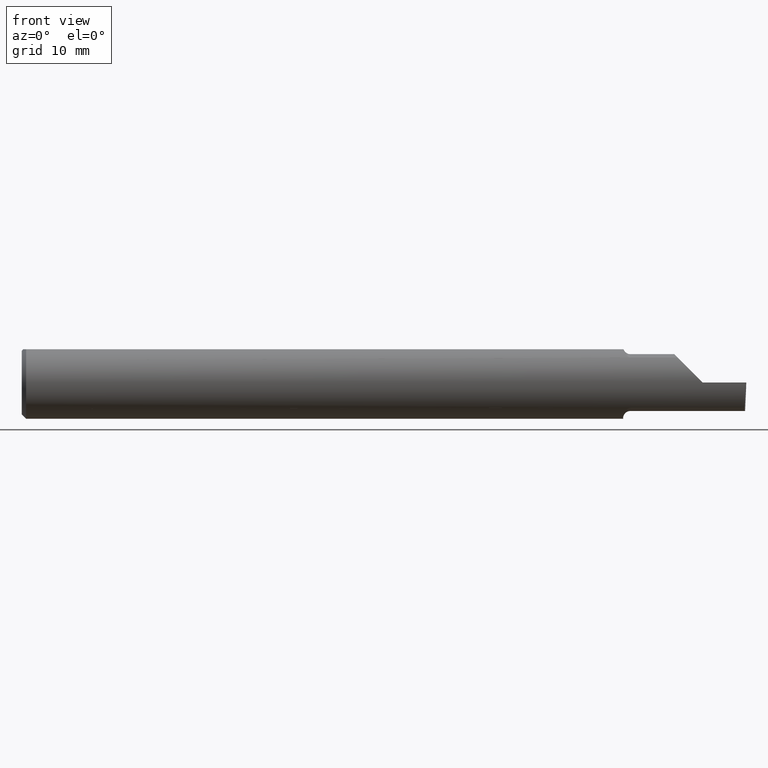
[diagram: clean part render]
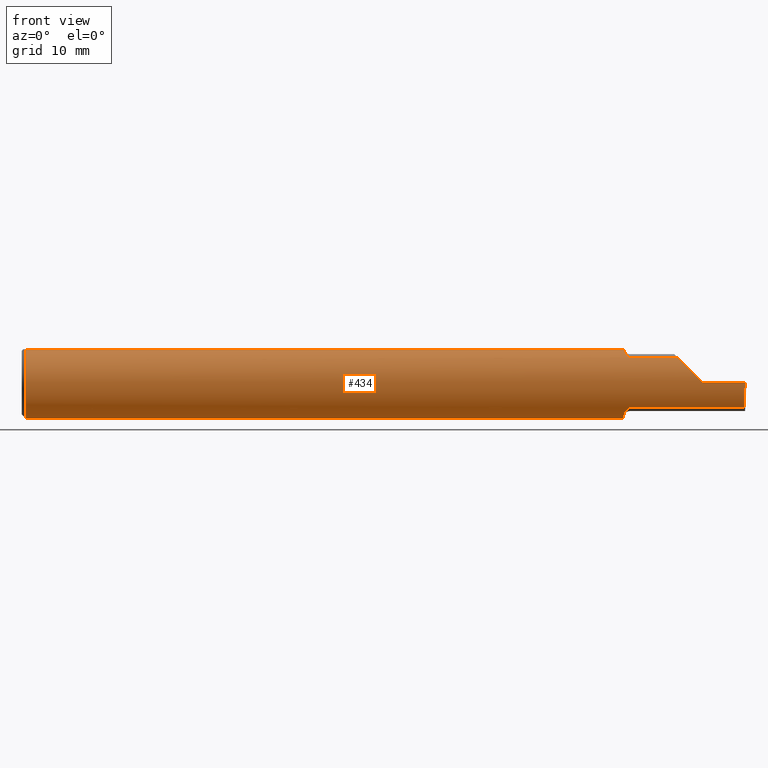
[diagram: same view with one face highlighted and labeled with its STEP entity id]
A machine part, front view. The second image highlights one B-rep face of the part: STEP entity #434.
In plain terms, the highlighted cylindrical surface (edge-blend (fillet) strip) has radius 3.1712 mm, axis along (-1, -0, -0).
Its self-contained STEP definition (entity closure, byte-faithful):
#4 = CARTESIAN_POINT ( 'NONE',  ( 2.075000000000000622, -0.02715330672748003313, -0.1218614805168695830 ) ) ;
#16 = AXIS2_PLACEMENT_3D ( 'NONE', #359, #484, #613 ) ;
#22 = ORIENTED_EDGE ( 'NONE', *, *, #275, .F. ) ;
#24 = CARTESIAN_POINT ( 'NONE',  ( 2.100000000000000089, -0.09015216647662478711, -0.08637192471845771269 ) ) ;
#35 = B_SPLINE_CURVE_WITH_KNOTS ( 'NONE', 3,
 ( #24, #43, #519, #162, #346, #220, #527, #355, #583, #703, #158, #708 ),
 .UNSPECIFIED., .F., .F.,
 ( 4, 2, 2, 2, 2, 4 ),
 ( 1.963988863383734834E-07, 0.0002052720857047376818, 0.0004103477725231370198, 0.0008204991461599461583, 0.001230650519796755134, 0.001640801893433564435 ),
 .UNSPECIFIED. ) ;
#42 = EDGE_CURVE ( 'NONE', #288, #68, #99, .T. ) ;
#43 = CARTESIAN_POINT ( 'NONE',  ( 2.097259638933032022, -0.09015216647662444016, -0.08637192471845808739 ) ) ;
#44 = ORIENTED_EDGE ( 'NONE', *, *, #670, .F. ) ;
#58 = DIRECTION ( 'NONE',  ( -1.000000000000000000, -0.000000000000000000, -0.000000000000000000 ) ) ;
#62 = ORIENTED_EDGE ( 'NONE', *, *, #557, .T. ) ;
#65 = CARTESIAN_POINT ( 'NONE',  ( 2.076326891871145719, -0.04895916665872582924, 0.1148500000000000076 ) ) ;
#68 = VERTEX_POINT ( 'NONE', #578 ) ;
#84 = CARTESIAN_POINT ( 'NONE',  ( 2.494256244271086054, -0.1126860773865890342, -0.06285177167860771241 ) ) ;
#92 = DIRECTION ( 'NONE',  ( 0.000000000000000000, 0.000000000000000000, 1.000000000000000000 ) ) ;
#94 = EDGE_CURVE ( 'NONE', #730, #425, #35, .T. ) ;
#97 = CARTESIAN_POINT ( 'NONE',  ( 3.749399456654637998E-32, -0.1248500000000000026, 3.061616997868380676E-16 ) ) ;
#98 = CARTESIAN_POINT ( 'NONE',  ( 2.076326891871145719, -0.04895916665872582924, 0.1148500000000000076 ) ) ;
#99 =( BOUNDED_CURVE ( )  B_SPLINE_CURVE ( 3, ( #456, #84, #412, #766 ),
 .UNSPECIFIED., .F., .T. ) 
 B_SPLINE_CURVE_WITH_KNOTS ( ( 4, 4 ),
 ( 0.2190942387645742062, 0.9826237902197102470 ),
 .UNSPECIFIED. ) 
 CURVE ( )  GEOMETRIC_REPRESENTATION_ITEM ( )  RATIONAL_B_SPLINE_CURVE ( ( 1.000000000000000000, 0.9520057322288819623, 0.9520057322288819623, 1.000000000000000000 ) ) 
 REPRESENTATION_ITEM ( '' )  );
#111 = VERTEX_POINT ( 'NONE', #647 ) ;
#115 = VECTOR ( 'NONE', #526, 39.37007874015748143 ) ;
#118 = CARTESIAN_POINT ( 'NONE',  ( 0.000000000000000000, 0.04895916665957456698, 0.1148500000000000076 ) ) ;
#122 = EDGE_CURVE ( 'NONE', #271, #337, #771, .T. ) ;
#124 = DIRECTION ( 'NONE',  ( 0.02617296143184117893, -0.0004568507411563390110, 0.9996573249755575929 ) ) ;
#127 = CARTESIAN_POINT ( 'NONE',  ( 2.100000000000000089, -0.09015216647662482874, 0.08637192471845768493 ) ) ;
#129 = VECTOR ( 'NONE', #420, 39.37007874015748143 ) ;
#131 = CARTESIAN_POINT ( 'NONE',  ( 2.075242610568498236, -0.03840785182185595115, -0.1189375631818110762 ) ) ;
#134 = CARTESIAN_POINT ( 'NONE',  ( 2.075000000000000178, -0.03284222813693379872, -0.1205938689030582739 ) ) ;
#140 = VERTEX_POINT ( 'NONE', #98 ) ;
#143 = ORIENTED_EDGE ( 'NONE', *, *, #545, .F. ) ;
#150 = DIRECTION ( 'NONE',  ( -1.000000000000000000, -0.000000000000000000, -0.000000000000000000 ) ) ;
#158 = CARTESIAN_POINT ( 'NONE',  ( 2.076227715916085348, -0.04883822427082836620, -0.1150249279297937410 ) ) ;
#161 = LINE ( 'NONE', #219, #468 ) ;
#162 = CARTESIAN_POINT ( 'NONE',  ( 2.090875432832430825, -0.08647060418110404101, -0.09007670266896510014 ) ) ;
#166 = VERTEX_POINT ( 'NONE', #254 ) ;
#197 = CARTESIAN_POINT ( 'NONE',  ( 2.086053217927678283, -0.08094812012684959868, 0.09514231764822832227 ) ) ;
#201 = CARTESIAN_POINT ( 'NONE',  ( 2.095195245915135285, -0.08928014009840806731, 0.08728826463238047173 ) ) ;
#204 = CARTESIAN_POINT ( 'NONE',  ( 2.263628075281542529, -0.09015216647662421812, 0.08637192471845822617 ) ) ;
#206 = EDGE_CURVE ( 'NONE', #314, #166, #693, .T. ) ;
#212 = AXIS2_PLACEMENT_3D ( 'NONE', #532, #757, #230 ) ;
#219 = CARTESIAN_POINT ( 'NONE',  ( 2.287250000000000227, -0.09015216647662482874, -0.08637192471845768493 ) ) ;
#220 = CARTESIAN_POINT ( 'NONE',  ( 2.085226514481665738, -0.07966992494485837517, -0.09623747760188229583 ) ) ;
#229 = CYLINDRICAL_SURFACE ( 'NONE', #240, 0.1248500000000000026 ) ;
#230 = DIRECTION ( 'NONE',  ( 0.000000000000000000, 0.000000000000000000, 1.000000000000000000 ) ) ;
#236 = CARTESIAN_POINT ( 'NONE',  ( 2.495690077103728921, -0.1248499999950964945, 8.800986592364463999E-18 ) ) ;
#240 = AXIS2_PLACEMENT_3D ( 'NONE', #411, #694, #92 ) ;
#254 = CARTESIAN_POINT ( 'NONE',  ( 2.075000000000000178, 0.04895916665957496944, 0.1148500000000000076 ) ) ;
#257 = CARTESIAN_POINT ( 'NONE',  ( 2.097502509400818838, -0.09015216647698107155, 0.08637192471808592675 ) ) ;
#265 = B_SPLINE_CURVE_WITH_KNOTS ( 'NONE', 3,
 ( #659, #131, #134, #266 ),
 .UNSPECIFIED., .F., .F.,
 ( 4, 4 ),
 ( 0.001640801893433564435, 0.002088276671954477758 ),
 .UNSPECIFIED. ) ;
#266 = CARTESIAN_POINT ( 'NONE',  ( 2.075000000000000622, -0.02715330672748003313, -0.1218614805168695830 ) ) ;
#271 = VERTEX_POINT ( 'NONE', #416 ) ;
#275 = EDGE_CURVE ( 'NONE', #481, #140, #305, .T. ) ;
#281 = ORIENTED_EDGE ( 'NONE', *, *, #206, .F. ) ;
#288 = VERTEX_POINT ( 'NONE', #608 ) ;
#294 =( BOUNDED_CURVE ( )  B_SPLINE_CURVE ( 3, ( #619, #385, #622, #204 ),
 .UNSPECIFIED., .F., .T. ) 
 B_SPLINE_CURVE_WITH_KNOTS ( ( 4, 4 ),
 ( 4.712388980384690562, 5.476375539154175520 ),
 .UNSPECIFIED. ) 
 CURVE ( )  GEOMETRIC_REPRESENTATION_ITEM ( )  RATIONAL_B_SPLINE_CURVE ( ( 1.000000000000000000, 0.9519489620492029847, 0.9519489620492029847, 1.000000000000000000 ) ) 
 REPRESENTATION_ITEM ( '' )  );
#296 = EDGE_CURVE ( 'NONE', #337, #481, #668, .T. ) ;
#305 = LINE ( 'NONE', #600, #129 ) ;
#307 = VECTOR ( 'NONE', #124, 39.37007874015748854 ) ;
#309 = VECTOR ( 'NONE', #372, 39.37007874015748143 ) ;
#311 = EDGE_CURVE ( 'NONE', #425, #314, #265, .T. ) ;
#314 = VERTEX_POINT ( 'NONE', #4 ) ;
#319 = CARTESIAN_POINT ( 'NONE',  ( 2.077489051389807440, -0.05793447593674516671, 0.1110239341513692690 ) ) ;
#337 = VERTEX_POINT ( 'NONE', #686 ) ;
#346 = CARTESIAN_POINT ( 'NONE',  ( 2.089311064734461265, -0.08485061678078631431, -0.09161469295857084527 ) ) ;
#352 = CARTESIAN_POINT ( 'NONE',  ( 0.01499999999999999944, -0.04895916665957456698, 0.1148500000000000076 ) ) ;
#355 = CARTESIAN_POINT ( 'NONE',  ( 2.080064983703085346, -0.06736177101644112708, -0.1052426774175050789 ) ) ;
#357 = ORIENTED_EDGE ( 'NONE', *, *, #383, .F. ) ;
#359 = CARTESIAN_POINT ( 'NONE',  ( 2.075000000000000178, 0.000000000000000000, 0.000000000000000000 ) ) ;
#369 = VECTOR ( 'NONE', #789, 39.37007874015748143 ) ;
#372 = DIRECTION ( 'NONE',  ( -1.000000000000000000, -0.000000000000000000, -0.000000000000000000 ) ) ;
#373 = DIRECTION ( 'NONE',  ( 0.000000000000000000, 0.000000000000000000, 1.000000000000000000 ) ) ;
#383 = EDGE_CURVE ( 'NONE', #140, #111, #717, .T. ) ;
#385 = CARTESIAN_POINT ( 'NONE',  ( 2.317406910344188997, -0.1248500000000000304, 0.03259308965581166062 ) ) ;
#389 = EDGE_CURVE ( 'NONE', #68, #639, #446, .T. ) ;
#411 = CARTESIAN_POINT ( 'NONE',  ( 0.000000000000000000, 0.000000000000000000, 0.000000000000000000 ) ) ;
#412 = CARTESIAN_POINT ( 'NONE',  ( 2.494835769263151537, -0.1248351010429638169, -0.03262966116142150541 ) ) ;
#416 = CARTESIAN_POINT ( 'NONE',  ( 0.01499999999999987454, 0.04895916665957496944, 0.1148500000000000076 ) ) ;
#420 = DIRECTION ( 'NONE',  ( 1.000000000000000000, 0.000000000000000000, 0.000000000000000000 ) ) ;
#425 = VERTEX_POINT ( 'NONE', #736 ) ;
#434 = ADVANCED_FACE ( 'NONE', ( #451 ), #229, .T. ) ;
#435 = CARTESIAN_POINT ( 'NONE',  ( 2.263628075281542529, -0.09015216647662421812, 0.08637192471845822617 ) ) ;
#441 = ORIENTED_EDGE ( 'NONE', *, *, #42, .T. ) ;
#446 = LINE ( 'NONE', #623, #307 ) ;
#451 = FACE_OUTER_BOUND ( 'NONE', #502, .T. ) ;
#456 = CARTESIAN_POINT ( 'NONE',  ( 2.494033449660866708, -0.09015216647662482874, -0.08637192471845768493 ) ) ;
#468 = VECTOR ( 'NONE', #150, 39.37007874015748143 ) ;
#473 = ORIENTED_EDGE ( 'NONE', *, *, #389, .T. ) ;
#480 = AXIS2_PLACEMENT_3D ( 'NONE', #662, #58, #373 ) ;
#481 = VERTEX_POINT ( 'NONE', #352 ) ;
#484 = DIRECTION ( 'NONE',  ( 1.000000000000000000, 0.000000000000000000, 0.000000000000000000 ) ) ;
#500 = CARTESIAN_POINT ( 'NONE',  ( 2.100000000000000089, -0.09015216647662478711, -0.08637192471845771269 ) ) ;
#501 = CARTESIAN_POINT ( 'NONE',  ( 2.084117122045868964, -0.07738857672815914468, 0.09808127502738682446 ) ) ;
#502 = EDGE_LOOP ( 'NONE', ( #143, #441, #473, #62, #598, #528, #357, #22, #675, #656, #44, #281, #546, #562 ) ) ;
#519 = CARTESIAN_POINT ( 'NONE',  ( 2.094784064659362510, -0.08911389870154515225, -0.08746251087962812754 ) ) ;
#526 = DIRECTION ( 'NONE',  ( -1.000000000000000000, -0.000000000000000000, -0.000000000000000000 ) ) ;
#527 = CARTESIAN_POINT ( 'NONE',  ( 2.083278800716858115, -0.07573621487658313556, -0.09938639293507191275 ) ) ;
#528 = ORIENTED_EDGE ( 'NONE', *, *, #626, .F. ) ;
#532 = CARTESIAN_POINT ( 'NONE',  ( 0.01499999999999999944, 0.000000000000000000, 0.000000000000000000 ) ) ;
#545 = EDGE_CURVE ( 'NONE', #288, #730, #161, .T. ) ;
#546 = ORIENTED_EDGE ( 'NONE', *, *, #311, .F. ) ;
#557 = EDGE_CURVE ( 'NONE', #639, #681, #640, .T. ) ;
#561 = CARTESIAN_POINT ( 'NONE',  ( 2.079335346929612083, -0.06618116991694721063, 0.1062694618620804582 ) ) ;
#562 = ORIENTED_EDGE ( 'NONE', *, *, #94, .F. ) ;
#578 = CARTESIAN_POINT ( 'NONE',  ( 2.495688583004118666, -0.1248499869621840785, -5.705736120965713455E-05 ) ) ;
#583 = CARTESIAN_POINT ( 'NONE',  ( 2.078850144156349611, -0.06295012366509135371, -0.1079450122012246133 ) ) ;
#598 = ORIENTED_EDGE ( 'NONE', *, *, #718, .T. ) ;
#600 = CARTESIAN_POINT ( 'NONE',  ( 0.000000000000000000, -0.04895916665957456698, 0.1148500000000000076 ) ) ;
#608 = CARTESIAN_POINT ( 'NONE',  ( 2.494033449660866708, -0.09015216647662482874, -0.08637192471845768493 ) ) ;
#611 = CARTESIAN_POINT ( 'NONE',  ( 2.350000000000000089, -0.1248500000000000026, 1.836970198721028825E-17 ) ) ;
#613 = DIRECTION ( 'NONE',  ( 0.000000000000000000, 0.000000000000000000, -1.000000000000000000 ) ) ;
#619 = CARTESIAN_POINT ( 'NONE',  ( 2.350000000000000089, -0.1248500000000000026, 1.836970198721028825E-17 ) ) ;
#622 = CARTESIAN_POINT ( 'NONE',  ( 2.287163018370355072, -0.1127002472623169216, 0.06283698162964553025 ) ) ;
#623 = CARTESIAN_POINT ( 'NONE',  ( 2.493072779947982820, -0.1248043149033065263, -0.09996577117162364079 ) ) ;
#626 = EDGE_CURVE ( 'NONE', #111, #777, #652, .T. ) ;
#639 = VERTEX_POINT ( 'NONE', #236 ) ;
#640 = LINE ( 'NONE', #97, #115 ) ;
#647 = CARTESIAN_POINT ( 'NONE',  ( 2.100000000000000089, -0.09015216647662482874, 0.08637192471845768493 ) ) ;
#652 = LINE ( 'NONE', #778, #369 ) ;
#656 = ORIENTED_EDGE ( 'NONE', *, *, #122, .F. ) ;
#659 = CARTESIAN_POINT ( 'NONE',  ( 2.075756598855984070, -0.04385000000000000009, -0.1168961077196328247 ) ) ;
#662 = CARTESIAN_POINT ( 'NONE',  ( 0.01499999999999999944, 0.000000000000000000, 0.000000000000000000 ) ) ;
#668 = CIRCLE ( 'NONE', #480, 0.1248500000000000026 ) ;
#670 = EDGE_CURVE ( 'NONE', #166, #271, #673, .T. ) ;
#673 = LINE ( 'NONE', #118, #309 ) ;
#675 = ORIENTED_EDGE ( 'NONE', *, *, #296, .F. ) ;
#680 = CARTESIAN_POINT ( 'NONE',  ( 2.091486677516400938, -0.08696861555842265445, 0.08959154238194109998 ) ) ;
#681 = VERTEX_POINT ( 'NONE', #611 ) ;
#684 = CARTESIAN_POINT ( 'NONE',  ( 2.089990549600693637, -0.08554147198584190204, 0.09096407607062390044 ) ) ;
#686 = CARTESIAN_POINT ( 'NONE',  ( 0.01499999999999999944, 0.000000000000000000, -0.1248500000000000026 ) ) ;
#693 = CIRCLE ( 'NONE', #16, 0.1248500000000000026 ) ;
#694 = DIRECTION ( 'NONE',  ( -1.000000000000000000, -0.000000000000000000, -0.000000000000000000 ) ) ;
#703 = CARTESIAN_POINT ( 'NONE',  ( 2.076929090759344287, -0.05370719728932715764, -0.1128289886859672464 ) ) ;
#708 = CARTESIAN_POINT ( 'NONE',  ( 2.075756598855984070, -0.04385000000000000009, -0.1168961077196328247 ) ) ;
#717 = B_SPLINE_CURVE_WITH_KNOTS ( 'NONE', 3,
 ( #65, #319, #561, #501, #197, #684, #680, #201, #257, #127 ),
 .UNSPECIFIED., .F., .F.,
 ( 4, 2, 2, 2, 4 ),
 ( 5.065792320106833029E-07, 0.0007388407001989857545, 0.001108007760682473870, 0.001292591290924218362, 0.001477174821165962420 ),
 .UNSPECIFIED. ) ;
#718 = EDGE_CURVE ( 'NONE', #681, #777, #294, .T. ) ;
#730 = VERTEX_POINT ( 'NONE', #500 ) ;
#736 = CARTESIAN_POINT ( 'NONE',  ( 2.075756598855984070, -0.04385000000000000009, -0.1168961077196328247 ) ) ;
#757 = DIRECTION ( 'NONE',  ( -1.000000000000000000, -0.000000000000000000, -0.000000000000000000 ) ) ;
#766 = CARTESIAN_POINT ( 'NONE',  ( 2.495688583004118666, -0.1248499869621840785, -5.705736120965713455E-05 ) ) ;
#771 = CIRCLE ( 'NONE', #212, 0.1248500000000000026 ) ;
#777 = VERTEX_POINT ( 'NONE', #435 ) ;
#778 = CARTESIAN_POINT ( 'NONE',  ( 2.287250000000000227, -0.09015216647662482874, 0.08637192471845768493 ) ) ;
#789 = DIRECTION ( 'NONE',  ( 1.000000000000000000, 0.000000000000000000, 0.000000000000000000 ) ) ;